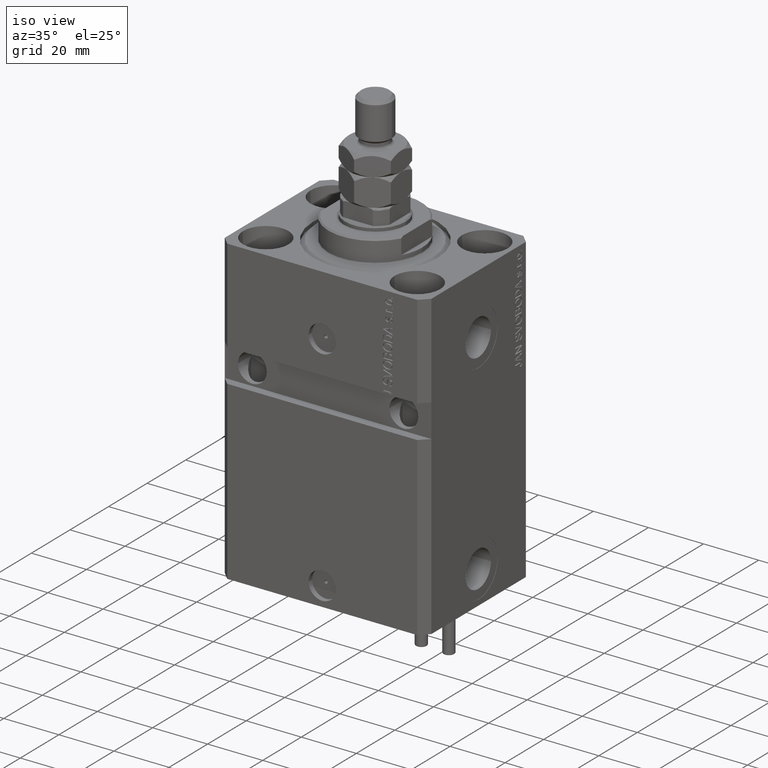
[diagram: clean part render]
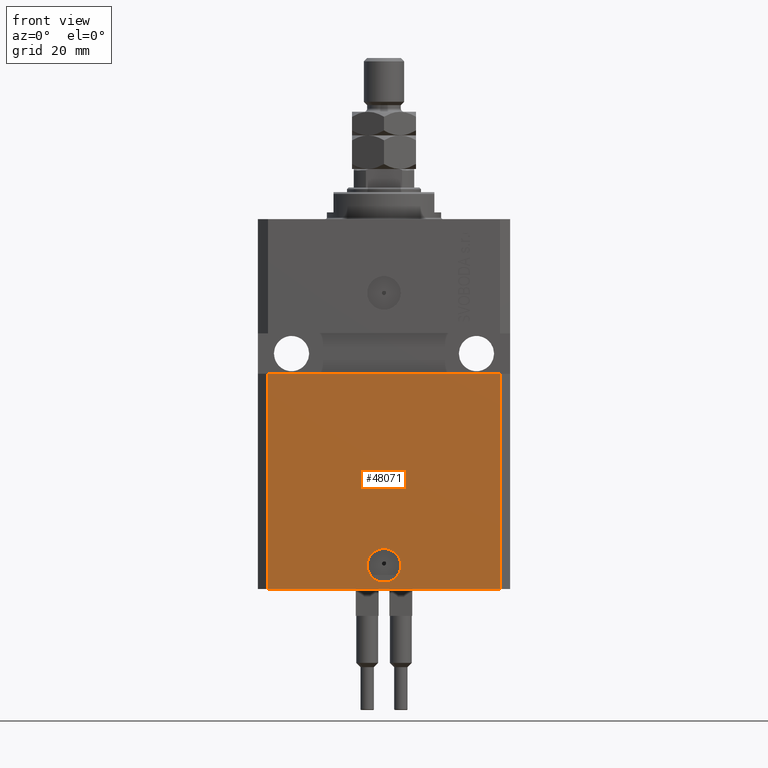
[diagram: tour spotlight — one face highlighted and labeled with its STEP entity id]
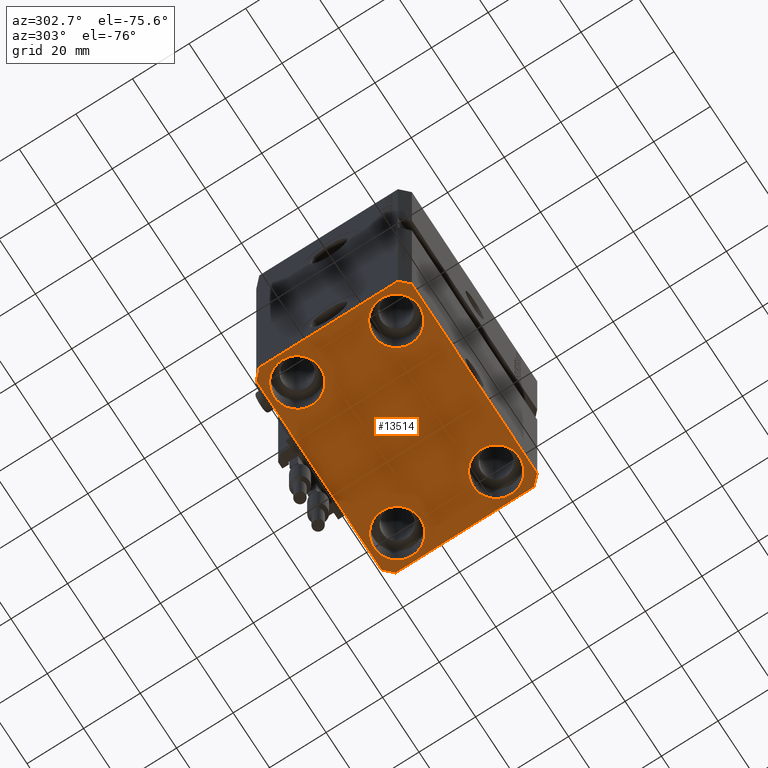
[diagram: tour spotlight — one face highlighted and labeled with its STEP entity id]
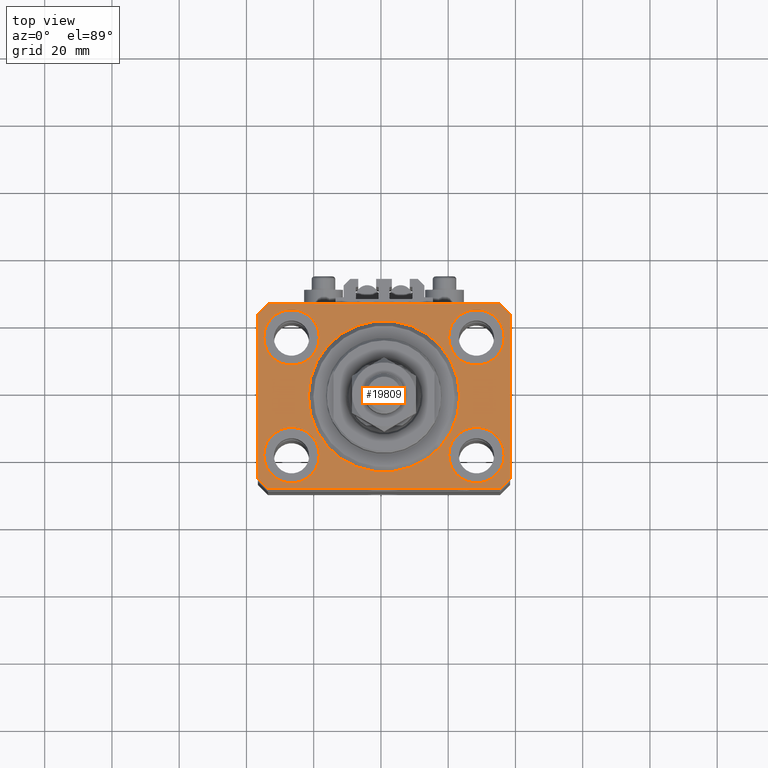
[diagram: tour spotlight — one face highlighted and labeled with its STEP entity id]
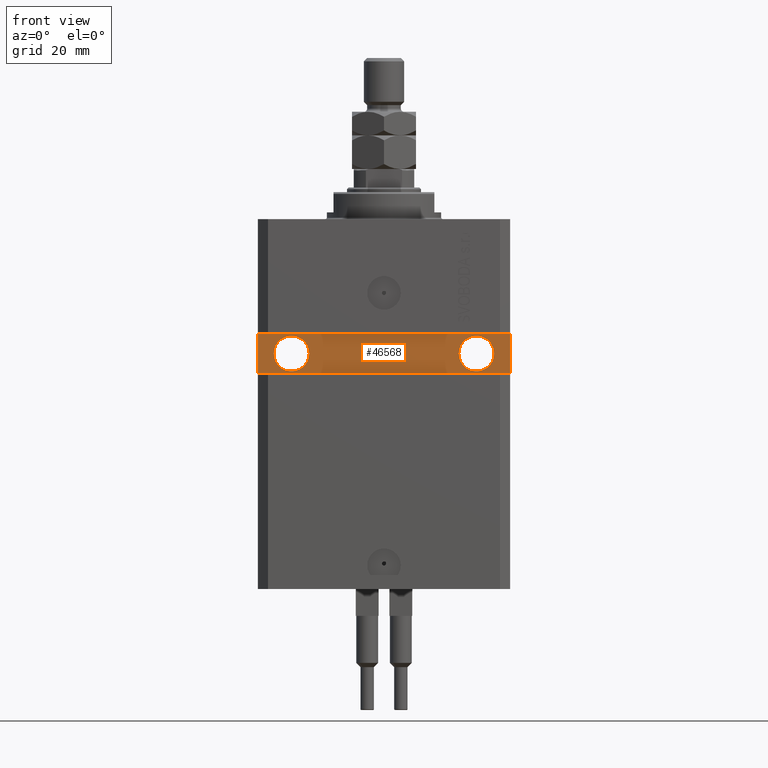
[diagram: tour spotlight — one face highlighted and labeled with its STEP entity id]
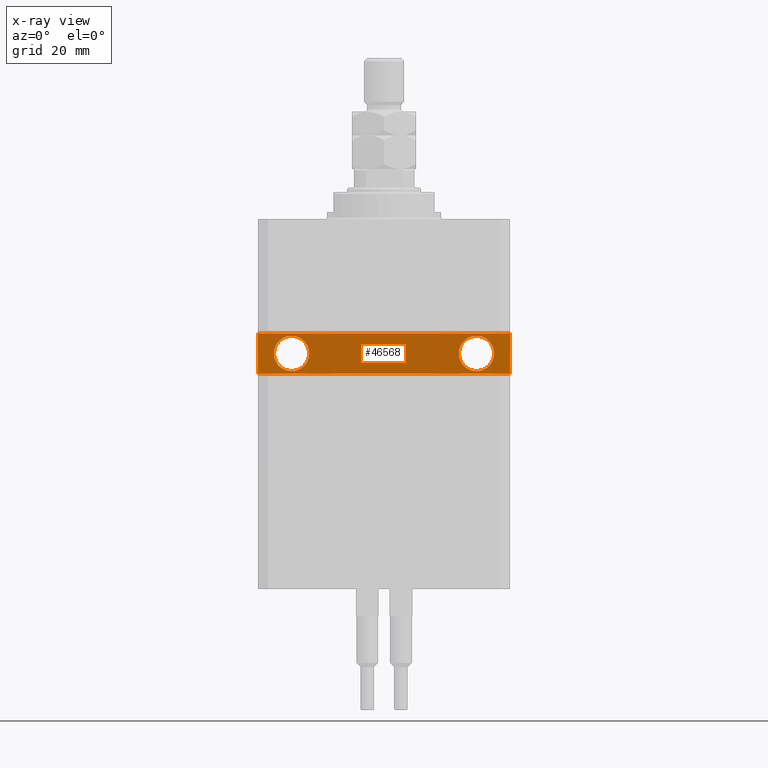
[diagram: x-ray of the same camera — body ghosted, this tour face saturated]
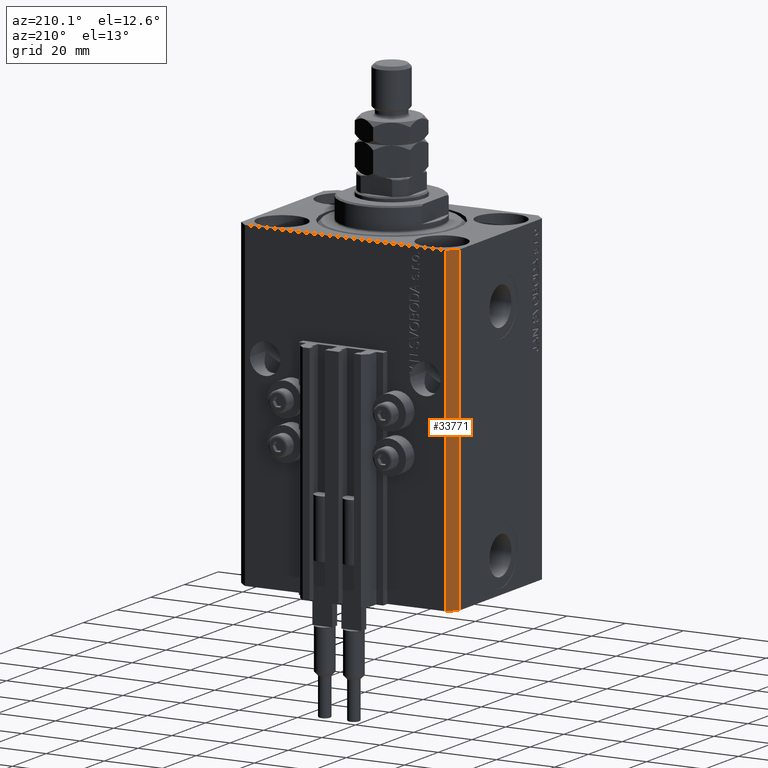
[diagram: tour spotlight — one face highlighted and labeled with its STEP entity id]
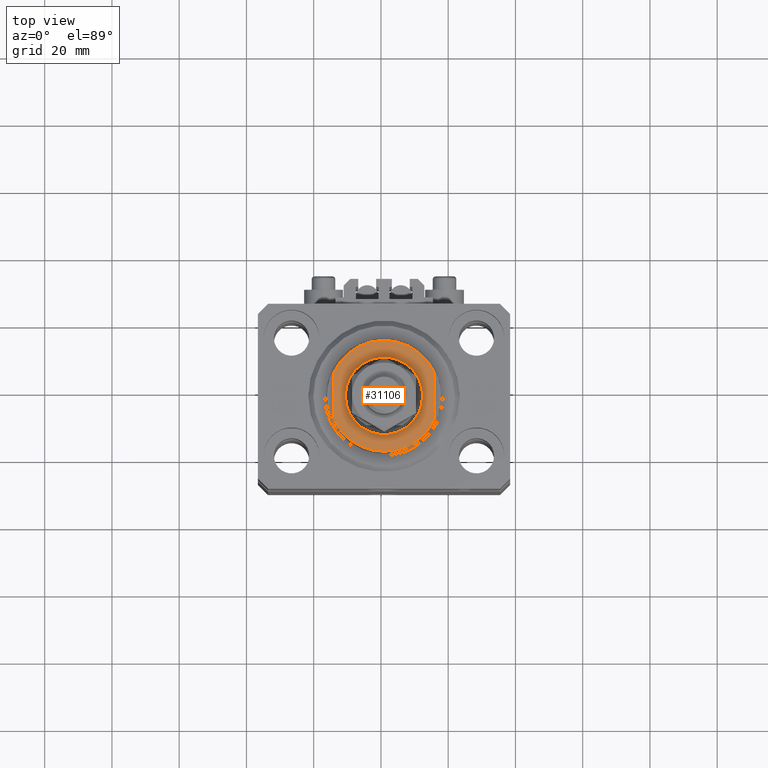
[diagram: tour spotlight — one face highlighted and labeled with its STEP entity id]
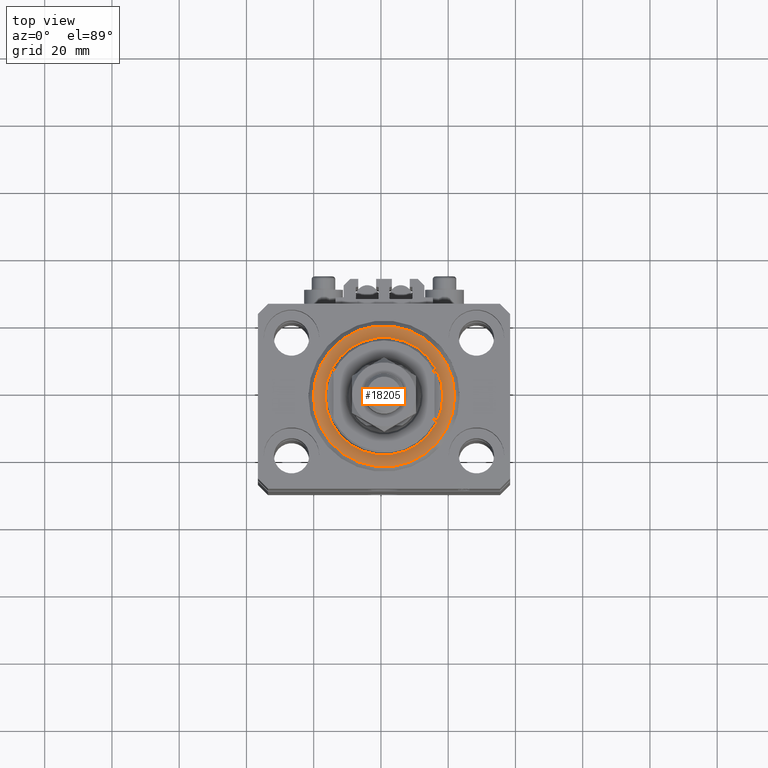
[diagram: tour spotlight — one face highlighted and labeled with its STEP entity id]
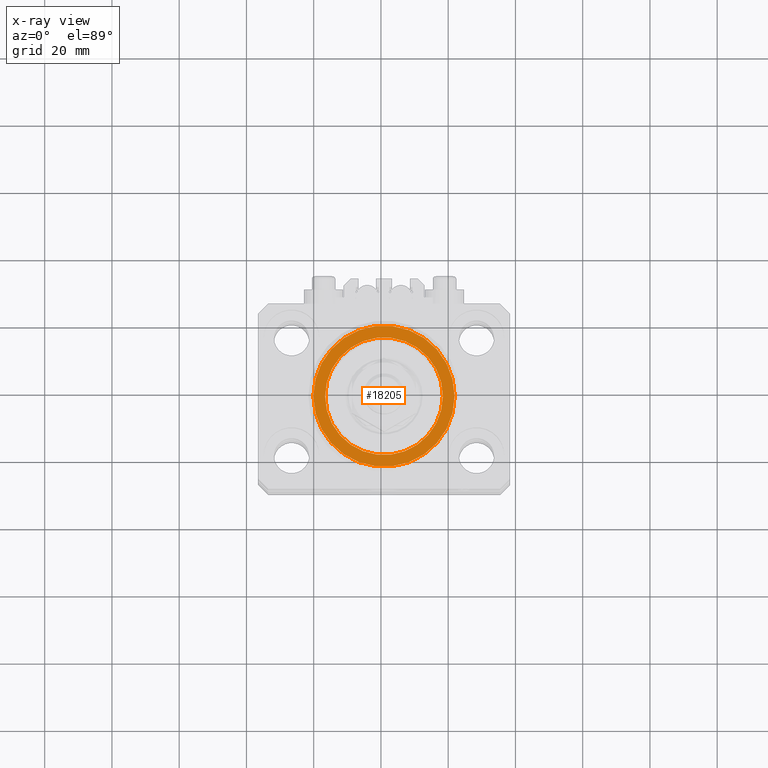
[diagram: x-ray of the same camera — body ghosted, this tour face saturated]
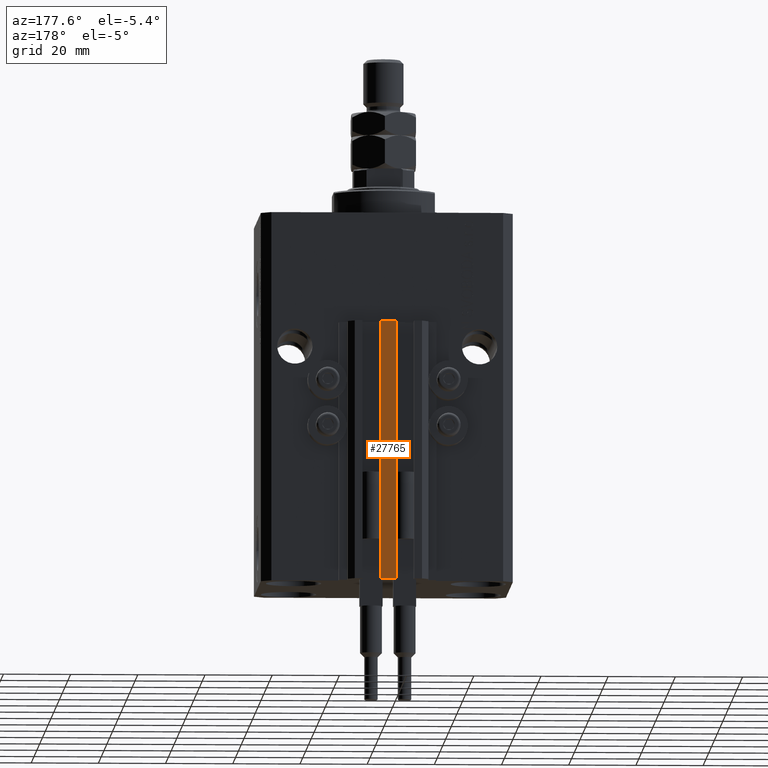
[diagram: tour spotlight — one face highlighted and labeled with its STEP entity id]
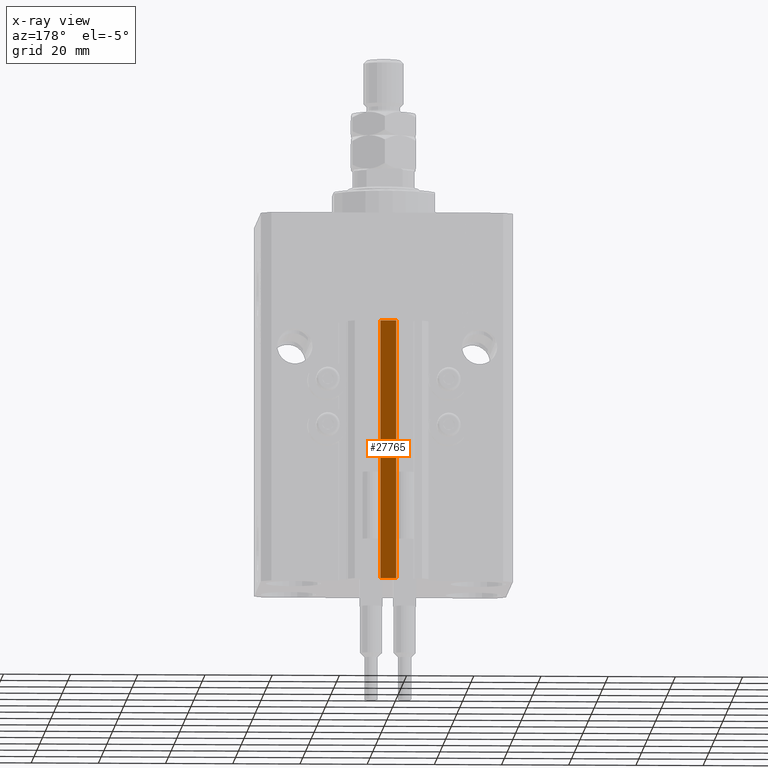
[diagram: x-ray of the same camera — body ghosted, this tour face saturated]
A machine part: a face-by-face anatomy tour. The part has 1181 B-rep faces; the first image is the clean iso view, then the 8 largest visible faces are spotlighted one at a time (largest first), each with its STEP entity span.

Face 1 — front view, entity #48071. In plain terms, the highlighted planar face has unit normal (0, -1, 0).
Definition (entity closure, byte-faithful):
#2215 = VERTEX_POINT ( 'NONE', #14736 ) ;
#2610 = CARTESIAN_POINT ( 'NONE',  ( -34.49999999999998579, -27.49999999999999645, -110.0000000000000000 ) ) ;
#2682 = EDGE_LOOP ( 'NONE', ( #26353, #21934 ) ) ;
#5275 = AXIS2_PLACEMENT_3D ( 'NONE', #42078, #30236, #27184 ) ;
#5320 = ORIENTED_EDGE ( 'NONE', *, *, #41850, .T. ) ;
#5714 = VERTEX_POINT ( 'NONE', #48922 ) ;
#6818 = DIRECTION ( 'NONE',  ( 0.000000000000000000, 0.000000000000000000, 1.000000000000000000 ) ) ;
#7405 = DIRECTION ( 'NONE',  ( 0.000000000000000000, 0.000000000000000000, 1.000000000000000000 ) ) ;
#7725 = EDGE_CURVE ( 'NONE', #22165, #41854, #37880, .T. ) ;
#12008 = VERTEX_POINT ( 'NONE', #22487 ) ;
#12376 = EDGE_CURVE ( 'NONE', #5714, #2215, #22174, .T. ) ;
#12411 = EDGE_CURVE ( 'NONE', #2215, #5714, #42319, .T. ) ;
#12492 = ORIENTED_EDGE ( 'NONE', *, *, #7725, .F. ) ;
#14625 = CARTESIAN_POINT ( 'NONE',  ( 34.49999999999999289, -27.49999999999999645, -110.0000000000000000 ) ) ;
#14736 = CARTESIAN_POINT ( 'NONE',  ( -5.000000000000006217, -27.49999999999999645, -103.0000000000000000 ) ) ;
#15018 = PLANE ( 'NONE',  #21772 ) ;
#15141 = DIRECTION ( 'NONE',  ( 1.176083712526788232E-16, -1.000000000000000000, 0.000000000000000000 ) ) ;
#15542 = LINE ( 'NONE', #14625, #29773 ) ;
#18016 = FACE_OUTER_BOUND ( 'NONE', #30057, .T. ) ;
#18963 = AXIS2_PLACEMENT_3D ( 'NONE', #42321, #15141, #30965 ) ;
#20875 = VECTOR ( 'NONE', #23144, 1000.000000000000000 ) ;
#21772 = AXIS2_PLACEMENT_3D ( 'NONE', #22560, #26325, #41205 ) ;
#21934 = ORIENTED_EDGE ( 'NONE', *, *, #12411, .F. ) ;
#22165 = VERTEX_POINT ( 'NONE', #40149 ) ;
#22174 = CIRCLE ( 'NONE', #18963, 5.000000000000006217 ) ;
#22487 = CARTESIAN_POINT ( 'NONE',  ( 34.49999999999999289, -27.49999999999999645, -110.0000000000000000 ) ) ;
#22560 = CARTESIAN_POINT ( 'NONE',  ( -34.49999999999998579, -27.49999999999999645, -110.0000000000000000 ) ) ;
#23144 = DIRECTION ( 'NONE',  ( 1.000000000000000000, 0.000000000000000000, 0.000000000000000000 ) ) ;
#24054 = EDGE_CURVE ( 'NONE', #41854, #49050, #35219, .T. ) ;
#24574 = ORIENTED_EDGE ( 'NONE', *, *, #24054, .F. ) ;
#26325 = DIRECTION ( 'NONE',  ( 0.000000000000000000, -1.000000000000000000, 0.000000000000000000 ) ) ;
#26353 = ORIENTED_EDGE ( 'NONE', *, *, #12376, .F. ) ;
#27184 = DIRECTION ( 'NONE',  ( 1.000000000000000000, 0.000000000000000000, 0.000000000000000000 ) ) ;
#27633 = CARTESIAN_POINT ( 'NONE',  ( -37.50000000000000000, -27.50000000000000000, -46.00000000000000000 ) ) ;
#29773 = VECTOR ( 'NONE', #6818, 1000.000000000000000 ) ;
#30057 = EDGE_LOOP ( 'NONE', ( #24574, #12492, #5320, #30125 ) ) ;
#30125 = ORIENTED_EDGE ( 'NONE', *, *, #45575, .T. ) ;
#30236 = DIRECTION ( 'NONE',  ( 1.176083712526788232E-16, -1.000000000000000000, 0.000000000000000000 ) ) ;
#30965 = DIRECTION ( 'NONE',  ( 1.000000000000000000, 0.000000000000000000, 0.000000000000000000 ) ) ;
#31202 = CARTESIAN_POINT ( 'NONE',  ( -34.49999999999998579, -27.49999999999999645, -110.0000000000000000 ) ) ;
#31843 = CARTESIAN_POINT ( 'NONE',  ( 34.49999999999999289, -27.49999999999999289, -46.00000000000000711 ) ) ;
#32455 = VECTOR ( 'NONE', #7405, 1000.000000000000000 ) ;
#33657 = FACE_BOUND ( 'NONE', #2682, .T. ) ;
#35000 = LINE ( 'NONE', #31202, #20875 ) ;
#35219 = LINE ( 'NONE', #27633, #36961 ) ;
#36961 = VECTOR ( 'NONE', #42993, 1000.000000000000000 ) ;
#37880 = LINE ( 'NONE', #2610, #32455 ) ;
#40149 = CARTESIAN_POINT ( 'NONE',  ( -34.49999999999998579, -27.49999999999999645, -110.0000000000000000 ) ) ;
#41205 = DIRECTION ( 'NONE',  ( 0.000000000000000000, -0.000000000000000000, -1.000000000000000000 ) ) ;
#41850 = EDGE_CURVE ( 'NONE', #22165, #12008, #35000, .T. ) ;
#41854 = VERTEX_POINT ( 'NONE', #46056 ) ;
#42078 = CARTESIAN_POINT ( 'NONE',  ( 0.000000000000000000, -27.49999999999999645, -103.0000000000000000 ) ) ;
#42319 = CIRCLE ( 'NONE', #5275, 5.000000000000006217 ) ;
#42321 = CARTESIAN_POINT ( 'NONE',  ( 0.000000000000000000, -27.49999999999999645, -103.0000000000000000 ) ) ;
#42993 = DIRECTION ( 'NONE',  ( 1.000000000000000000, 9.251858538542972814E-17, -9.251858538542972814E-17 ) ) ;
#45575 = EDGE_CURVE ( 'NONE', #12008, #49050, #15542, .T. ) ;
#46056 = CARTESIAN_POINT ( 'NONE',  ( -34.49999999999998579, -27.50000000000000000, -46.00000000000000000 ) ) ;
#48071 = ADVANCED_FACE ( 'NONE', ( #33657, #18016 ), #15018, .T. ) ;
#48922 = CARTESIAN_POINT ( 'NONE',  ( 5.000000000000006217, -27.49999999999999645, -103.0000000000000000 ) ) ;
#49050 = VERTEX_POINT ( 'NONE', #31843 ) ;

Face 2 — auxiliary view, entity #13514. In plain terms, the highlighted planar face has unit normal (0, 0, 1).
Definition (entity closure, byte-faithful):
#28 = DIRECTION ( 'NONE',  ( -0.000000000000000000, -0.000000000000000000, 1.000000000000000000 ) ) ;
#75 = VERTEX_POINT ( 'NONE', #40693 ) ;
#237 = CARTESIAN_POINT ( 'NONE',  ( 34.50000000000056843, 27.50000000000000000, -110.0000000000000000 ) ) ;
#1058 = LINE ( 'NONE', #32515, #34458 ) ;
#1569 = DIRECTION ( 'NONE',  ( -0.000000000000000000, -0.000000000000000000, 1.000000000000000000 ) ) ;
#1586 = CIRCLE ( 'NONE', #14472, 8.249999999999992895 ) ;
#2231 = CARTESIAN_POINT ( 'NONE',  ( 37.50000000000051870, 24.49999999999995381, -110.0000000000000000 ) ) ;
#2382 = CARTESIAN_POINT ( 'NONE',  ( 37.49999999999999289, -24.50000000000000000, -110.0000000000000000 ) ) ;
#3276 = CARTESIAN_POINT ( 'NONE',  ( 19.25000000000000000, 17.50000000000001066, -110.0000000000000000 ) ) ;
#3767 = CARTESIAN_POINT ( 'NONE',  ( -19.25000000000000355, 17.50000000000000000, -110.0000000000000000 ) ) ;
#3999 = LINE ( 'NONE', #237, #33659 ) ;
#5074 = ORIENTED_EDGE ( 'NONE', *, *, #13697, .T. ) ;
#5248 = CARTESIAN_POINT ( 'NONE',  ( 27.49999999999999645, 17.50000000000001066, -110.0000000000000000 ) ) ;
#5263 = EDGE_CURVE ( 'NONE', #7270, #38775, #46571, .T. ) ;
#5579 = AXIS2_PLACEMENT_3D ( 'NONE', #5734, #44003, #17303 ) ;
#5734 = CARTESIAN_POINT ( 'NONE',  ( 27.50000000000000355, -17.50000000000000000, -110.0000000000000000 ) ) ;
#5904 = LINE ( 'NONE', #2382, #17538 ) ;
#7270 = VERTEX_POINT ( 'NONE', #2231 ) ;
#8575 = VECTOR ( 'NONE', #15916, 1000.000000000000000 ) ;
#9369 = EDGE_LOOP ( 'NONE', ( #41496, #35951 ) ) ;
#9471 = ORIENTED_EDGE ( 'NONE', *, *, #34953, .F. ) ;
#9724 = DIRECTION ( 'NONE',  ( 1.000000000000000000, 0.000000000000000000, 0.000000000000000000 ) ) ;
#10145 = CARTESIAN_POINT ( 'NONE',  ( 34.49999999999999289, -27.49999999999999645, -110.0000000000000000 ) ) ;
#10224 = CARTESIAN_POINT ( 'NONE',  ( -34.49999999999999289, 27.50000000000000000, -110.0000000000000000 ) ) ;
#10527 = DIRECTION ( 'NONE',  ( 1.000000000000000000, 0.000000000000000000, 0.000000000000000000 ) ) ;
#10726 = LINE ( 'NONE', #10224, #8575 ) ;
#10909 = CARTESIAN_POINT ( 'NONE',  ( -37.49999999999999289, -24.50000000000000000, -110.0000000000000000 ) ) ;
#11349 = CARTESIAN_POINT ( 'NONE',  ( -27.50000000000000355, -17.50000000000000000, -110.0000000000000000 ) ) ;
#11604 = EDGE_CURVE ( 'NONE', #48041, #26604, #47051, .T. ) ;
#11611 = CARTESIAN_POINT ( 'NONE',  ( 37.50000000000051870, 24.49999999999995381, -110.0000000000000000 ) ) ;
#12008 = VERTEX_POINT ( 'NONE', #22487 ) ;
#12756 = AXIS2_PLACEMENT_3D ( 'NONE', #17057, #25097, #10527 ) ;
#13012 = DIRECTION ( 'NONE',  ( -0.000000000000000000, -0.000000000000000000, 1.000000000000000000 ) ) ;
#13152 = CARTESIAN_POINT ( 'NONE',  ( -27.50000000000000355, 17.50000000000000000, -110.0000000000000000 ) ) ;
#13514 = ADVANCED_FACE ( 'NONE', ( #25013, #40400, #48418, #48177, #29301 ), #13715, .F. ) ;
#13671 = CIRCLE ( 'NONE', #33821, 8.250000000000000000 ) ;
#13697 = EDGE_CURVE ( 'NONE', #33320, #23701, #49542, .T. ) ;
#13715 = PLANE ( 'NONE',  #15005 ) ;
#13745 = VERTEX_POINT ( 'NONE', #14414 ) ;
#13809 = DIRECTION ( 'NONE',  ( 1.000000000000000000, 0.000000000000000000, 0.000000000000000000 ) ) ;
#14304 = DIRECTION ( 'NONE',  ( 1.000000000000000000, 0.000000000000000000, 0.000000000000000000 ) ) ;
#14414 = CARTESIAN_POINT ( 'NONE',  ( 35.75000000000000711, -17.50000000000000000, -110.0000000000000000 ) ) ;
#14472 = AXIS2_PLACEMENT_3D ( 'NONE', #5248, #28900, #13809 ) ;
#15005 = AXIS2_PLACEMENT_3D ( 'NONE', #34607, #15214, #37894 ) ;
#15214 = DIRECTION ( 'NONE',  ( 0.000000000000000000, 0.000000000000000000, 1.000000000000000000 ) ) ;
#15916 = DIRECTION ( 'NONE',  ( -0.7071067811865471286, -0.7071067811865479058, 0.000000000000000000 ) ) ;
#16041 = DIRECTION ( 'NONE',  ( -0.000000000000000000, -0.000000000000000000, 1.000000000000000000 ) ) ;
#16090 = VERTEX_POINT ( 'NONE', #3276 ) ;
#16312 = ORIENTED_EDGE ( 'NONE', *, *, #44409, .T. ) ;
#16676 = VERTEX_POINT ( 'NONE', #24791 ) ;
#17057 = CARTESIAN_POINT ( 'NONE',  ( -27.50000000000000355, -17.50000000000000000, -110.0000000000000000 ) ) ;
#17303 = DIRECTION ( 'NONE',  ( 1.000000000000000000, 0.000000000000000000, 0.000000000000000000 ) ) ;
#17505 = ORIENTED_EDGE ( 'NONE', *, *, #42660, .F. ) ;
#17538 = VECTOR ( 'NONE', #25778, 1000.000000000000000 ) ;
#17960 = VECTOR ( 'NONE', #27691, 1000.000000000000114 ) ;
#18452 = EDGE_CURVE ( 'NONE', #38775, #75, #3999, .T. ) ;
#18516 = VECTOR ( 'NONE', #22482, 1000.000000000000000 ) ;
#19194 = EDGE_CURVE ( 'NONE', #26604, #48041, #39292, .T. ) ;
#19844 = EDGE_CURVE ( 'NONE', #12008, #16676, #29267, .T. ) ;
#20432 = EDGE_LOOP ( 'NONE', ( #24348, #16312 ) ) ;
#20497 = AXIS2_PLACEMENT_3D ( 'NONE', #11349, #28, #46064 ) ;
#20607 = AXIS2_PLACEMENT_3D ( 'NONE', #13152, #1569, #44118 ) ;
#20875 = VECTOR ( 'NONE', #23144, 1000.000000000000000 ) ;
#21447 = EDGE_CURVE ( 'NONE', #31199, #40740, #1058, .T. ) ;
#22141 = DIRECTION ( 'NONE',  ( -1.000000000000000000, 0.000000000000000000, 0.000000000000000000 ) ) ;
#22165 = VERTEX_POINT ( 'NONE', #40149 ) ;
#22482 = DIRECTION ( 'NONE',  ( 0.7071067811865483499, -0.7071067811865466846, 0.000000000000000000 ) ) ;
#22487 = CARTESIAN_POINT ( 'NONE',  ( 34.49999999999999289, -27.49999999999999645, -110.0000000000000000 ) ) ;
#23144 = DIRECTION ( 'NONE',  ( 1.000000000000000000, 0.000000000000000000, 0.000000000000000000 ) ) ;
#23701 = VERTEX_POINT ( 'NONE', #34791 ) ;
#24348 = ORIENTED_EDGE ( 'NONE', *, *, #41995, .T. ) ;
#24791 = CARTESIAN_POINT ( 'NONE',  ( 37.49999999999999289, -24.50000000000000000, -110.0000000000000000 ) ) ;
#25013 = FACE_BOUND ( 'NONE', #9369, .T. ) ;
#25097 = DIRECTION ( 'NONE',  ( -0.000000000000000000, -0.000000000000000000, 1.000000000000000000 ) ) ;
#25764 = AXIS2_PLACEMENT_3D ( 'NONE', #37473, #33180, #14304 ) ;
#25778 = DIRECTION ( 'NONE',  ( 1.076236605503979380E-14, 1.000000000000000000, 0.000000000000000000 ) ) ;
#26109 = VERTEX_POINT ( 'NONE', #27649 ) ;
#26140 = ORIENTED_EDGE ( 'NONE', *, *, #19844, .F. ) ;
#26604 = VERTEX_POINT ( 'NONE', #42332 ) ;
#27012 = EDGE_LOOP ( 'NONE', ( #32684, #30859 ) ) ;
#27615 = CARTESIAN_POINT ( 'NONE',  ( -27.50000000000000355, 17.50000000000000000, -110.0000000000000000 ) ) ;
#27649 = CARTESIAN_POINT ( 'NONE',  ( 19.25000000000000000, -17.50000000000000000, -110.0000000000000000 ) ) ;
#27691 = DIRECTION ( 'NONE',  ( -0.7071067811865356934, 0.7071067811865594521, 0.000000000000000000 ) ) ;
#27840 = VERTEX_POINT ( 'NONE', #39979 ) ;
#28637 = ORIENTED_EDGE ( 'NONE', *, *, #43064, .T. ) ;
#28773 = DIRECTION ( 'NONE',  ( 0.7071067811865474617, 0.7071067811865474617, 0.000000000000000000 ) ) ;
#28852 = CARTESIAN_POINT ( 'NONE',  ( 27.50000000000000355, -17.50000000000000000, -110.0000000000000000 ) ) ;
#28900 = DIRECTION ( 'NONE',  ( -0.000000000000000000, -0.000000000000000000, 1.000000000000000000 ) ) ;
#29267 = LINE ( 'NONE', #10145, #35201 ) ;
#29301 = FACE_OUTER_BOUND ( 'NONE', #29659, .T. ) ;
#29523 = EDGE_LOOP ( 'NONE', ( #28637, #5074 ) ) ;
#29659 = EDGE_LOOP ( 'NONE', ( #41613, #49634, #42970, #26140, #45238, #17505, #33477, #9471 ) ) ;
#30604 = CARTESIAN_POINT ( 'NONE',  ( -37.49999999999999289, 24.50000000000000000, -110.0000000000000000 ) ) ;
#30859 = ORIENTED_EDGE ( 'NONE', *, *, #41323, .T. ) ;
#31199 = VERTEX_POINT ( 'NONE', #30604 ) ;
#31202 = CARTESIAN_POINT ( 'NONE',  ( -34.49999999999998579, -27.49999999999999645, -110.0000000000000000 ) ) ;
#31771 = DIRECTION ( 'NONE',  ( 0.000000000000000000, -1.000000000000000000, 0.000000000000000000 ) ) ;
#32515 = CARTESIAN_POINT ( 'NONE',  ( -37.49999999999999289, 24.50000000000000000, -110.0000000000000000 ) ) ;
#32684 = ORIENTED_EDGE ( 'NONE', *, *, #43184, .T. ) ;
#33180 = DIRECTION ( 'NONE',  ( -0.000000000000000000, -0.000000000000000000, 1.000000000000000000 ) ) ;
#33320 = VERTEX_POINT ( 'NONE', #3767 ) ;
#33477 = ORIENTED_EDGE ( 'NONE', *, *, #21447, .F. ) ;
#33659 = VECTOR ( 'NONE', #22141, 1000.000000000000000 ) ;
#33821 = AXIS2_PLACEMENT_3D ( 'NONE', #27615, #16041, #34952 ) ;
#34458 = VECTOR ( 'NONE', #31771, 1000.000000000000000 ) ;
#34607 = CARTESIAN_POINT ( 'NONE',  ( 0.000000000000000000, 0.000000000000000000, -110.0000000000000000 ) ) ;
#34791 = CARTESIAN_POINT ( 'NONE',  ( -35.75000000000000711, 17.50000000000000000, -110.0000000000000000 ) ) ;
#34952 = DIRECTION ( 'NONE',  ( 1.000000000000000000, 0.000000000000000000, 0.000000000000000000 ) ) ;
#34953 = EDGE_CURVE ( 'NONE', #75, #31199, #10726, .T. ) ;
#35000 = LINE ( 'NONE', #31202, #20875 ) ;
#35201 = VECTOR ( 'NONE', #28773, 1000.000000000000114 ) ;
#35951 = ORIENTED_EDGE ( 'NONE', *, *, #11604, .T. ) ;
#37364 = LINE ( 'NONE', #10909, #18516 ) ;
#37473 = CARTESIAN_POINT ( 'NONE',  ( 27.49999999999999645, 17.50000000000001066, -110.0000000000000000 ) ) ;
#37894 = DIRECTION ( 'NONE',  ( 1.000000000000000000, 0.000000000000000000, -0.000000000000000000 ) ) ;
#38775 = VERTEX_POINT ( 'NONE', #44919 ) ;
#39292 = CIRCLE ( 'NONE', #12756, 8.250000000000000000 ) ;
#39606 = EDGE_CURVE ( 'NONE', #16676, #7270, #5904, .T. ) ;
#39979 = CARTESIAN_POINT ( 'NONE',  ( 35.74999999999999289, 17.50000000000001066, -110.0000000000000000 ) ) ;
#40149 = CARTESIAN_POINT ( 'NONE',  ( -34.49999999999998579, -27.49999999999999645, -110.0000000000000000 ) ) ;
#40358 = CARTESIAN_POINT ( 'NONE',  ( -37.49999999999999289, -24.50000000000000000, -110.0000000000000000 ) ) ;
#40400 = FACE_BOUND ( 'NONE', #27012, .T. ) ;
#40693 = CARTESIAN_POINT ( 'NONE',  ( -34.49999999999999289, 27.50000000000000000, -110.0000000000000000 ) ) ;
#40740 = VERTEX_POINT ( 'NONE', #40358 ) ;
#40960 = CIRCLE ( 'NONE', #5579, 8.250000000000000000 ) ;
#41323 = EDGE_CURVE ( 'NONE', #13745, #26109, #40960, .T. ) ;
#41496 = ORIENTED_EDGE ( 'NONE', *, *, #19194, .T. ) ;
#41613 = ORIENTED_EDGE ( 'NONE', *, *, #18452, .F. ) ;
#41850 = EDGE_CURVE ( 'NONE', #22165, #12008, #35000, .T. ) ;
#41995 = EDGE_CURVE ( 'NONE', #16090, #27840, #1586, .T. ) ;
#42332 = CARTESIAN_POINT ( 'NONE',  ( -35.75000000000000711, -17.50000000000000000, -110.0000000000000000 ) ) ;
#42660 = EDGE_CURVE ( 'NONE', #40740, #22165, #37364, .T. ) ;
#42970 = ORIENTED_EDGE ( 'NONE', *, *, #39606, .F. ) ;
#43064 = EDGE_CURVE ( 'NONE', #23701, #33320, #13671, .T. ) ;
#43184 = EDGE_CURVE ( 'NONE', #26109, #13745, #45836, .T. ) ;
#44003 = DIRECTION ( 'NONE',  ( -0.000000000000000000, -0.000000000000000000, 1.000000000000000000 ) ) ;
#44118 = DIRECTION ( 'NONE',  ( 1.000000000000000000, 0.000000000000000000, 0.000000000000000000 ) ) ;
#44409 = EDGE_CURVE ( 'NONE', #27840, #16090, #47455, .T. ) ;
#44466 = CARTESIAN_POINT ( 'NONE',  ( -19.25000000000000355, -17.50000000000000000, -110.0000000000000000 ) ) ;
#44919 = CARTESIAN_POINT ( 'NONE',  ( 34.50000000000056843, 27.50000000000000000, -110.0000000000000000 ) ) ;
#45238 = ORIENTED_EDGE ( 'NONE', *, *, #41850, .F. ) ;
#45836 = CIRCLE ( 'NONE', #48226, 8.250000000000000000 ) ;
#46064 = DIRECTION ( 'NONE',  ( 1.000000000000000000, 0.000000000000000000, 0.000000000000000000 ) ) ;
#46571 = LINE ( 'NONE', #11611, #17960 ) ;
#47051 = CIRCLE ( 'NONE', #20497, 8.250000000000000000 ) ;
#47455 = CIRCLE ( 'NONE', #25764, 8.249999999999992895 ) ;
#48041 = VERTEX_POINT ( 'NONE', #44466 ) ;
#48177 = FACE_BOUND ( 'NONE', #29523, .T. ) ;
#48226 = AXIS2_PLACEMENT_3D ( 'NONE', #28852, #13012, #9724 ) ;
#48418 = FACE_BOUND ( 'NONE', #20432, .T. ) ;
#49542 = CIRCLE ( 'NONE', #20607, 8.250000000000000000 ) ;
#49634 = ORIENTED_EDGE ( 'NONE', *, *, #5263, .F. ) ;

Face 3 — top view, entity #19809. In plain terms, the highlighted planar face has unit normal (0, 0, 1).
Definition (entity closure, byte-faithful):
#477 = ORIENTED_EDGE ( 'NONE', *, *, #44257, .F. ) ;
#545 = CARTESIAN_POINT ( 'NONE',  ( -27.50000000000000355, -17.50000000000000000, 0.000000000000000000 ) ) ;
#691 = DIRECTION ( 'NONE',  ( 1.000000000000000000, 0.000000000000000000, 0.000000000000000000 ) ) ;
#795 = DIRECTION ( 'NONE',  ( 0.000000000000000000, 0.000000000000000000, 1.000000000000000000 ) ) ;
#1050 = VERTEX_POINT ( 'NONE', #32457 ) ;
#1211 = DIRECTION ( 'NONE',  ( 0.000000000000000000, 0.000000000000000000, 1.000000000000000000 ) ) ;
#1600 = ORIENTED_EDGE ( 'NONE', *, *, #1882, .F. ) ;
#1830 = PLANE ( 'NONE',  #34418 ) ;
#1882 = EDGE_CURVE ( 'NONE', #3565, #36698, #26746, .T. ) ;
#2157 = DIRECTION ( 'NONE',  ( 1.000000000000000000, 0.000000000000000000, 0.000000000000000000 ) ) ;
#2210 = DIRECTION ( 'NONE',  ( 0.000000000000000000, 0.000000000000000000, 1.000000000000000000 ) ) ;
#2220 = EDGE_LOOP ( 'NONE', ( #38931, #17192 ) ) ;
#2591 = AXIS2_PLACEMENT_3D ( 'NONE', #14551, #26097, #45243 ) ;
#3015 = DIRECTION ( 'NONE',  ( 1.000000000000000000, 0.000000000000000000, 0.000000000000000000 ) ) ;
#3121 = VECTOR ( 'NONE', #36266, 1000.000000000000000 ) ;
#3565 = VERTEX_POINT ( 'NONE', #15908 ) ;
#3599 = CARTESIAN_POINT ( 'NONE',  ( -19.25000000000000355, -17.50000000000000000, 0.000000000000000000 ) ) ;
#3793 = AXIS2_PLACEMENT_3D ( 'NONE', #40197, #47958, #2157 ) ;
#3913 = CIRCLE ( 'NONE', #19180, 8.250000000000000000 ) ;
#4853 = CIRCLE ( 'NONE', #24145, 8.250000000000000000 ) ;
#5252 = CARTESIAN_POINT ( 'NONE',  ( 35.74999999999999289, 17.50000000000001066, 0.000000000000000000 ) ) ;
#5299 = EDGE_LOOP ( 'NONE', ( #477, #29257 ) ) ;
#5649 = CARTESIAN_POINT ( 'NONE',  ( 34.49999999999999289, -27.49999999999999645, 0.000000000000000000 ) ) ;
#6206 = VECTOR ( 'NONE', #26933, 1000.000000000000114 ) ;
#6764 = EDGE_CURVE ( 'NONE', #36698, #3565, #25167, .T. ) ;
#6770 = EDGE_CURVE ( 'NONE', #31545, #30555, #26348, .T. ) ;
#7051 = DIRECTION ( 'NONE',  ( 0.000000000000000000, 0.000000000000000000, 1.000000000000000000 ) ) ;
#7178 = ORIENTED_EDGE ( 'NONE', *, *, #10212, .T. ) ;
#7188 = CIRCLE ( 'NONE', #24857, 8.250000000000000000 ) ;
#7655 = VERTEX_POINT ( 'NONE', #3599 ) ;
#7922 = VERTEX_POINT ( 'NONE', #20182 ) ;
#8642 = CARTESIAN_POINT ( 'NONE',  ( -34.49999999999999289, 27.50000000000000000, 0.000000000000000000 ) ) ;
#9034 = LINE ( 'NONE', #20347, #37568 ) ;
#9566 = VERTEX_POINT ( 'NONE', #37445 ) ;
#10121 = LINE ( 'NONE', #25200, #47803 ) ;
#10196 = EDGE_CURVE ( 'NONE', #43494, #25458, #17904, .T. ) ;
#10212 = EDGE_CURVE ( 'NONE', #1050, #28509, #10121, .T. ) ;
#10221 = CARTESIAN_POINT ( 'NONE',  ( -34.49999999999998579, -27.49999999999999645, 0.000000000000000000 ) ) ;
#12056 = CARTESIAN_POINT ( 'NONE',  ( 19.25000000000000000, -17.50000000000000000, 0.000000000000000000 ) ) ;
#12367 = DIRECTION ( 'NONE',  ( 1.000000000000000000, 0.000000000000000000, 0.000000000000000000 ) ) ;
#12554 = CARTESIAN_POINT ( 'NONE',  ( 27.50000000000000355, -17.50000000000000000, 0.000000000000000000 ) ) ;
#12695 = DIRECTION ( 'NONE',  ( -0.7071067811865471286, -0.7071067811865479058, 0.000000000000000000 ) ) ;
#12932 = DIRECTION ( 'NONE',  ( 1.000000000000000000, 0.000000000000000000, -0.000000000000000000 ) ) ;
#13177 = FACE_BOUND ( 'NONE', #24330, .T. ) ;
#13403 = DIRECTION ( 'NONE',  ( 1.076236605503979380E-14, 1.000000000000000000, 0.000000000000000000 ) ) ;
#13819 = AXIS2_PLACEMENT_3D ( 'NONE', #19107, #26916, #3015 ) ;
#13840 = CARTESIAN_POINT ( 'NONE',  ( -27.50000000000000355, 17.50000000000000000, 0.000000000000000000 ) ) ;
#13928 = FACE_OUTER_BOUND ( 'NONE', #39382, .T. ) ;
#14551 = CARTESIAN_POINT ( 'NONE',  ( 0.000000000000000000, 0.000000000000000000, 0.000000000000000000 ) ) ;
#15850 = CARTESIAN_POINT ( 'NONE',  ( 34.49999999999999289, -27.49999999999999645, 0.000000000000000000 ) ) ;
#15908 = CARTESIAN_POINT ( 'NONE',  ( 22.50000000000000355, 0.000000000000000000, 0.000000000000000000 ) ) ;
#15911 = CARTESIAN_POINT ( 'NONE',  ( -37.49999999999999289, -24.50000000000000000, 0.000000000000000000 ) ) ;
#15931 = CIRCLE ( 'NONE', #16747, 8.250000000000000000 ) ;
#16092 = LINE ( 'NONE', #15850, #6206 ) ;
#16747 = AXIS2_PLACEMENT_3D ( 'NONE', #13840, #7051, #44546 ) ;
#17123 = ORIENTED_EDGE ( 'NONE', *, *, #36723, .F. ) ;
#17187 = FACE_BOUND ( 'NONE', #2220, .T. ) ;
#17192 = ORIENTED_EDGE ( 'NONE', *, *, #40978, .F. ) ;
#17434 = FACE_BOUND ( 'NONE', #32197, .T. ) ;
#17664 = DIRECTION ( 'NONE',  ( -1.000000000000000000, 0.000000000000000000, 0.000000000000000000 ) ) ;
#17904 = LINE ( 'NONE', #20940, #24478 ) ;
#18787 = EDGE_LOOP ( 'NONE', ( #41527, #33062 ) ) ;
#19107 = CARTESIAN_POINT ( 'NONE',  ( -27.50000000000000355, 17.50000000000000000, 0.000000000000000000 ) ) ;
#19180 = AXIS2_PLACEMENT_3D ( 'NONE', #45007, #2210, #48262 ) ;
#19196 = EDGE_CURVE ( 'NONE', #7655, #7922, #3913, .T. ) ;
#19326 = CARTESIAN_POINT ( 'NONE',  ( 27.50000000000000355, -17.50000000000000000, 0.000000000000000000 ) ) ;
#19809 = ADVANCED_FACE ( 'NONE', ( #17187, #40618, #13177, #36602, #17434, #13928 ), #1830, .T. ) ;
#20182 = CARTESIAN_POINT ( 'NONE',  ( -35.75000000000000711, -17.50000000000000000, 0.000000000000000000 ) ) ;
#20322 = AXIS2_PLACEMENT_3D ( 'NONE', #45233, #22331, #49239 ) ;
#20347 = CARTESIAN_POINT ( 'NONE',  ( 37.50000000000051870, 24.49999999999995381, 0.000000000000000000 ) ) ;
#20585 = AXIS2_PLACEMENT_3D ( 'NONE', #40011, #29156, #44517 ) ;
#20723 = CARTESIAN_POINT ( 'NONE',  ( -34.49999999999999289, 27.50000000000000000, 0.000000000000000000 ) ) ;
#20822 = VERTEX_POINT ( 'NONE', #10221 ) ;
#20940 = CARTESIAN_POINT ( 'NONE',  ( 34.50000000000056843, 27.50000000000000000, 0.000000000000000000 ) ) ;
#21337 = DIRECTION ( 'NONE',  ( 1.000000000000000000, 0.000000000000000000, 0.000000000000000000 ) ) ;
#21825 = ORIENTED_EDGE ( 'NONE', *, *, #36441, .T. ) ;
#22331 = DIRECTION ( 'NONE',  ( 0.000000000000000000, 0.000000000000000000, 1.000000000000000000 ) ) ;
#22579 = CARTESIAN_POINT ( 'NONE',  ( -37.49999999999999289, 24.50000000000000000, 0.000000000000000000 ) ) ;
#23094 = CARTESIAN_POINT ( 'NONE',  ( -22.50000000000000355, 2.755455298081544383E-15, 0.000000000000000000 ) ) ;
#23541 = DIRECTION ( 'NONE',  ( 0.000000000000000000, -1.000000000000000000, 0.000000000000000000 ) ) ;
#23652 = VERTEX_POINT ( 'NONE', #5649 ) ;
#23713 = EDGE_CURVE ( 'NONE', #30555, #20822, #35531, .T. ) ;
#24145 = AXIS2_PLACEMENT_3D ( 'NONE', #12554, #1211, #39251 ) ;
#24330 = EDGE_LOOP ( 'NONE', ( #35468, #17123 ) ) ;
#24361 = DIRECTION ( 'NONE',  ( -0.7071067811865356934, 0.7071067811865594521, 0.000000000000000000 ) ) ;
#24478 = VECTOR ( 'NONE', #17664, 1000.000000000000000 ) ;
#24857 = AXIS2_PLACEMENT_3D ( 'NONE', #545, #795, #12367 ) ;
#25167 = CIRCLE ( 'NONE', #20322, 22.50000000000000355 ) ;
#25200 = CARTESIAN_POINT ( 'NONE',  ( 37.49999999999999289, -24.50000000000000000, 0.000000000000000000 ) ) ;
#25458 = VERTEX_POINT ( 'NONE', #8642 ) ;
#25469 = CIRCLE ( 'NONE', #3793, 8.249999999999992895 ) ;
#25507 = VECTOR ( 'NONE', #12695, 1000.000000000000000 ) ;
#25577 = CARTESIAN_POINT ( 'NONE',  ( 19.25000000000000000, 17.50000000000001066, 0.000000000000000000 ) ) ;
#25914 = EDGE_CURVE ( 'NONE', #35175, #9566, #45927, .T. ) ;
#26097 = DIRECTION ( 'NONE',  ( 0.000000000000000000, 0.000000000000000000, 1.000000000000000000 ) ) ;
#26160 = VERTEX_POINT ( 'NONE', #12056 ) ;
#26348 = LINE ( 'NONE', #22579, #49289 ) ;
#26746 = CIRCLE ( 'NONE', #2591, 22.50000000000000355 ) ;
#26916 = DIRECTION ( 'NONE',  ( 0.000000000000000000, 0.000000000000000000, 1.000000000000000000 ) ) ;
#26933 = DIRECTION ( 'NONE',  ( 0.7071067811865474617, 0.7071067811865474617, 0.000000000000000000 ) ) ;
#27135 = VERTEX_POINT ( 'NONE', #25577 ) ;
#27421 = CIRCLE ( 'NONE', #42702, 8.250000000000000000 ) ;
#28509 = VERTEX_POINT ( 'NONE', #29007 ) ;
#29007 = CARTESIAN_POINT ( 'NONE',  ( 37.50000000000051870, 24.49999999999995381, 0.000000000000000000 ) ) ;
#29156 = DIRECTION ( 'NONE',  ( 0.000000000000000000, 0.000000000000000000, 1.000000000000000000 ) ) ;
#29257 = ORIENTED_EDGE ( 'NONE', *, *, #47858, .F. ) ;
#29378 = VECTOR ( 'NONE', #21337, 1000.000000000000000 ) ;
#29647 = EDGE_CURVE ( 'NONE', #20822, #23652, #32941, .T. ) ;
#30094 = VERTEX_POINT ( 'NONE', #37923 ) ;
#30555 = VERTEX_POINT ( 'NONE', #15911 ) ;
#31545 = VERTEX_POINT ( 'NONE', #44102 ) ;
#32197 = EDGE_LOOP ( 'NONE', ( #1600, #39118 ) ) ;
#32457 = CARTESIAN_POINT ( 'NONE',  ( 37.49999999999999289, -24.50000000000000000, 0.000000000000000000 ) ) ;
#32941 = LINE ( 'NONE', #39998, #29378 ) ;
#33062 = ORIENTED_EDGE ( 'NONE', *, *, #39098, .F. ) ;
#34418 = AXIS2_PLACEMENT_3D ( 'NONE', #40871, #37105, #12932 ) ;
#34612 = EDGE_CURVE ( 'NONE', #36403, #27135, #48729, .T. ) ;
#34842 = ORIENTED_EDGE ( 'NONE', *, *, #6770, .T. ) ;
#35175 = VERTEX_POINT ( 'NONE', #42852 ) ;
#35468 = ORIENTED_EDGE ( 'NONE', *, *, #34612, .F. ) ;
#35531 = LINE ( 'NONE', #44044, #3121 ) ;
#35720 = ORIENTED_EDGE ( 'NONE', *, *, #10196, .T. ) ;
#36259 = EDGE_CURVE ( 'NONE', #23652, #1050, #16092, .T. ) ;
#36266 = DIRECTION ( 'NONE',  ( 0.7071067811865483499, -0.7071067811865466846, 0.000000000000000000 ) ) ;
#36323 = ORIENTED_EDGE ( 'NONE', *, *, #29647, .T. ) ;
#36331 = ORIENTED_EDGE ( 'NONE', *, *, #23713, .T. ) ;
#36403 = VERTEX_POINT ( 'NONE', #5252 ) ;
#36441 = EDGE_CURVE ( 'NONE', #28509, #43494, #9034, .T. ) ;
#36602 = FACE_BOUND ( 'NONE', #18787, .T. ) ;
#36698 = VERTEX_POINT ( 'NONE', #23094 ) ;
#36723 = EDGE_CURVE ( 'NONE', #27135, #36403, #25469, .T. ) ;
#37003 = EDGE_CURVE ( 'NONE', #25458, #31545, #43404, .T. ) ;
#37105 = DIRECTION ( 'NONE',  ( 0.000000000000000000, 0.000000000000000000, 1.000000000000000000 ) ) ;
#37445 = CARTESIAN_POINT ( 'NONE',  ( -35.75000000000000711, 17.50000000000000000, 0.000000000000000000 ) ) ;
#37568 = VECTOR ( 'NONE', #24361, 1000.000000000000114 ) ;
#37923 = CARTESIAN_POINT ( 'NONE',  ( 35.75000000000000711, -17.50000000000000000, 0.000000000000000000 ) ) ;
#38476 = ORIENTED_EDGE ( 'NONE', *, *, #37003, .T. ) ;
#38931 = ORIENTED_EDGE ( 'NONE', *, *, #19196, .F. ) ;
#39098 = EDGE_CURVE ( 'NONE', #9566, #35175, #15931, .T. ) ;
#39118 = ORIENTED_EDGE ( 'NONE', *, *, #6764, .F. ) ;
#39251 = DIRECTION ( 'NONE',  ( 1.000000000000000000, 0.000000000000000000, 0.000000000000000000 ) ) ;
#39382 = EDGE_LOOP ( 'NONE', ( #35720, #38476, #34842, #36331, #36323, #49112, #7178, #21825 ) ) ;
#39998 = CARTESIAN_POINT ( 'NONE',  ( -34.49999999999998579, -27.49999999999999645, 0.000000000000000000 ) ) ;
#40011 = CARTESIAN_POINT ( 'NONE',  ( 27.49999999999999645, 17.50000000000001066, 0.000000000000000000 ) ) ;
#40197 = CARTESIAN_POINT ( 'NONE',  ( 27.49999999999999645, 17.50000000000001066, 0.000000000000000000 ) ) ;
#40618 = FACE_BOUND ( 'NONE', #5299, .T. ) ;
#40871 = CARTESIAN_POINT ( 'NONE',  ( 0.000000000000000000, 0.000000000000000000, 0.000000000000000000 ) ) ;
#40978 = EDGE_CURVE ( 'NONE', #7922, #7655, #7188, .T. ) ;
#41527 = ORIENTED_EDGE ( 'NONE', *, *, #25914, .F. ) ;
#42702 = AXIS2_PLACEMENT_3D ( 'NONE', #19326, #46258, #691 ) ;
#42852 = CARTESIAN_POINT ( 'NONE',  ( -19.25000000000000355, 17.50000000000000000, 0.000000000000000000 ) ) ;
#43404 = LINE ( 'NONE', #20723, #25507 ) ;
#43494 = VERTEX_POINT ( 'NONE', #47654 ) ;
#44044 = CARTESIAN_POINT ( 'NONE',  ( -37.49999999999999289, -24.50000000000000000, 0.000000000000000000 ) ) ;
#44102 = CARTESIAN_POINT ( 'NONE',  ( -37.49999999999999289, 24.50000000000000000, 0.000000000000000000 ) ) ;
#44257 = EDGE_CURVE ( 'NONE', #30094, #26160, #4853, .T. ) ;
#44517 = DIRECTION ( 'NONE',  ( 1.000000000000000000, 0.000000000000000000, 0.000000000000000000 ) ) ;
#44546 = DIRECTION ( 'NONE',  ( 1.000000000000000000, 0.000000000000000000, 0.000000000000000000 ) ) ;
#45007 = CARTESIAN_POINT ( 'NONE',  ( -27.50000000000000355, -17.50000000000000000, 0.000000000000000000 ) ) ;
#45233 = CARTESIAN_POINT ( 'NONE',  ( 0.000000000000000000, 0.000000000000000000, 0.000000000000000000 ) ) ;
#45243 = DIRECTION ( 'NONE',  ( 1.000000000000000000, 0.000000000000000000, 0.000000000000000000 ) ) ;
#45927 = CIRCLE ( 'NONE', #13819, 8.250000000000000000 ) ;
#46258 = DIRECTION ( 'NONE',  ( 0.000000000000000000, 0.000000000000000000, 1.000000000000000000 ) ) ;
#47654 = CARTESIAN_POINT ( 'NONE',  ( 34.50000000000056843, 27.50000000000000000, 0.000000000000000000 ) ) ;
#47803 = VECTOR ( 'NONE', #13403, 1000.000000000000000 ) ;
#47858 = EDGE_CURVE ( 'NONE', #26160, #30094, #27421, .T. ) ;
#47958 = DIRECTION ( 'NONE',  ( 0.000000000000000000, 0.000000000000000000, 1.000000000000000000 ) ) ;
#48262 = DIRECTION ( 'NONE',  ( 1.000000000000000000, 0.000000000000000000, 0.000000000000000000 ) ) ;
#48729 = CIRCLE ( 'NONE', #20585, 8.249999999999992895 ) ;
#49112 = ORIENTED_EDGE ( 'NONE', *, *, #36259, .T. ) ;
#49239 = DIRECTION ( 'NONE',  ( 1.000000000000000000, 0.000000000000000000, 0.000000000000000000 ) ) ;
#49289 = VECTOR ( 'NONE', #23541, 1000.000000000000000 ) ;

Face 4 — front view, entity #46568. An x-ray twin of the same camera follows (body ghosted, this face saturated) — the face is partly hidden behind the body. In plain terms, the highlighted planar face has unit normal (0, -1, 0).
Definition (entity closure, byte-faithful):
#199 = ORIENTED_EDGE ( 'NONE', *, *, #21697, .T. ) ;
#214 = LINE ( 'NONE', #34226, #6109 ) ;
#347 = AXIS2_PLACEMENT_3D ( 'NONE', #22450, #2811, #41861 ) ;
#758 = DIRECTION ( 'NONE',  ( 1.000000000000000000, 9.251858538542972814E-17, -9.251858538542972814E-17 ) ) ;
#871 = AXIS2_PLACEMENT_3D ( 'NONE', #20427, #13392, #9113 ) ;
#1647 = DIRECTION ( 'NONE',  ( 1.000000000000000000, 0.000000000000000000, 0.000000000000000000 ) ) ;
#2811 = DIRECTION ( 'NONE',  ( 1.171720209325604191E-16, -1.000000000000000000, 0.000000000000000000 ) ) ;
#4402 = VERTEX_POINT ( 'NONE', #32157 ) ;
#5428 = CARTESIAN_POINT ( 'NONE',  ( -27.49999999999999289, -24.50000000000000000, -40.00000000000000711 ) ) ;
#6109 = VECTOR ( 'NONE', #49533, 1000.000000000000000 ) ;
#6551 = VERTEX_POINT ( 'NONE', #32667 ) ;
#8536 = VERTEX_POINT ( 'NONE', #34229 ) ;
#9113 = DIRECTION ( 'NONE',  ( 1.000000000000000000, 0.000000000000000000, 0.000000000000000000 ) ) ;
#11203 = ORIENTED_EDGE ( 'NONE', *, *, #24507, .F. ) ;
#12530 = EDGE_LOOP ( 'NONE', ( #199, #39997, #23254, #46628 ) ) ;
#12772 = EDGE_CURVE ( 'NONE', #48111, #43814, #214, .T. ) ;
#12790 = VECTOR ( 'NONE', #37578, 1000.000000000000000 ) ;
#13392 = DIRECTION ( 'NONE',  ( 1.101411730780568590E-16, -1.000000000000000000, 0.000000000000000000 ) ) ;
#13623 = CARTESIAN_POINT ( 'NONE',  ( 2.191435984341281325E-15, -24.49999999999999645, 0.000000000000000000 ) ) ;
#14053 = VERTEX_POINT ( 'NONE', #23536 ) ;
#14456 = CIRCLE ( 'NONE', #20812, 5.249999999999994671 ) ;
#14906 = LINE ( 'NONE', #37836, #12790 ) ;
#17136 = FACE_BOUND ( 'NONE', #39232, .T. ) ;
#17381 = DIRECTION ( 'NONE',  ( 1.000000000000000000, 9.251858538542974046E-17, 0.000000000000000000 ) ) ;
#17595 = ORIENTED_EDGE ( 'NONE', *, *, #48430, .F. ) ;
#18052 = CIRCLE ( 'NONE', #347, 5.249999999999994671 ) ;
#18540 = AXIS2_PLACEMENT_3D ( 'NONE', #13623, #40313, #17381 ) ;
#19599 = CARTESIAN_POINT ( 'NONE',  ( 37.49999999999999289, -24.49999999999999289, -46.00000000000000711 ) ) ;
#19923 = VECTOR ( 'NONE', #758, 1000.000000000000000 ) ;
#20427 = CARTESIAN_POINT ( 'NONE',  ( -27.49999999999999289, -24.50000000000000000, -40.00000000000000711 ) ) ;
#20769 = DIRECTION ( 'NONE',  ( 1.101411730780568590E-16, -1.000000000000000000, 0.000000000000000000 ) ) ;
#20812 = AXIS2_PLACEMENT_3D ( 'NONE', #42396, #34609, #38382 ) ;
#21697 = EDGE_CURVE ( 'NONE', #8536, #28803, #23642, .T. ) ;
#22187 = ORIENTED_EDGE ( 'NONE', *, *, #41555, .F. ) ;
#22319 = EDGE_LOOP ( 'NONE', ( #11203, #47060 ) ) ;
#22450 = CARTESIAN_POINT ( 'NONE',  ( 27.50000000000000711, -24.49999999999999289, -40.00000000000000000 ) ) ;
#23212 = EDGE_CURVE ( 'NONE', #43814, #8536, #14906, .T. ) ;
#23254 = ORIENTED_EDGE ( 'NONE', *, *, #12772, .T. ) ;
#23536 = CARTESIAN_POINT ( 'NONE',  ( -32.74999999999999289, -24.50000000000000000, -40.00000000000000711 ) ) ;
#23642 = LINE ( 'NONE', #44227, #19923 ) ;
#24507 = EDGE_CURVE ( 'NONE', #4402, #43614, #14456, .T. ) ;
#25089 = CARTESIAN_POINT ( 'NONE',  ( 37.49999999999999289, -24.49999999999999289, -46.00000000000000711 ) ) ;
#25426 = FACE_BOUND ( 'NONE', #22319, .T. ) ;
#26468 = AXIS2_PLACEMENT_3D ( 'NONE', #5428, #20769, #1647 ) ;
#27414 = EDGE_CURVE ( 'NONE', #43614, #4402, #18052, .T. ) ;
#28803 = VERTEX_POINT ( 'NONE', #25089 ) ;
#29312 = CARTESIAN_POINT ( 'NONE',  ( -37.50000000000000000, -24.50000000000000000, -34.00000000000000000 ) ) ;
#29703 = CIRCLE ( 'NONE', #26468, 5.249999999999997335 ) ;
#31200 = DIRECTION ( 'NONE',  ( 0.000000000000000000, 0.000000000000000000, 1.000000000000000000 ) ) ;
#31589 = CARTESIAN_POINT ( 'NONE',  ( 37.49999999999999289, -24.49999999999999289, -33.99999999999997868 ) ) ;
#32157 = CARTESIAN_POINT ( 'NONE',  ( 32.75000000000000000, -24.49999999999999289, -40.00000000000000000 ) ) ;
#32503 = FACE_OUTER_BOUND ( 'NONE', #12530, .T. ) ;
#32667 = CARTESIAN_POINT ( 'NONE',  ( -22.24999999999999645, -24.50000000000000000, -40.00000000000000711 ) ) ;
#33333 = CARTESIAN_POINT ( 'NONE',  ( 22.25000000000001421, -24.49999999999999289, -40.00000000000000000 ) ) ;
#33474 = EDGE_CURVE ( 'NONE', #28803, #48111, #35741, .T. ) ;
#34226 = CARTESIAN_POINT ( 'NONE',  ( 37.49999999999999289, -24.49999999999999289, -33.99999999999997868 ) ) ;
#34229 = CARTESIAN_POINT ( 'NONE',  ( -37.50000000000000000, -24.50000000000000000, -46.00000000000000000 ) ) ;
#34609 = DIRECTION ( 'NONE',  ( 1.171720209325604191E-16, -1.000000000000000000, 0.000000000000000000 ) ) ;
#35741 = LINE ( 'NONE', #19599, #37454 ) ;
#37454 = VECTOR ( 'NONE', #31200, 1000.000000000000000 ) ;
#37578 = DIRECTION ( 'NONE',  ( 0.000000000000000000, 0.000000000000000000, -1.000000000000000000 ) ) ;
#37836 = CARTESIAN_POINT ( 'NONE',  ( -37.50000000000000000, -24.50000000000000000, -34.00000000000000000 ) ) ;
#38382 = DIRECTION ( 'NONE',  ( 1.000000000000000000, 0.000000000000000000, 0.000000000000000000 ) ) ;
#39232 = EDGE_LOOP ( 'NONE', ( #17595, #22187 ) ) ;
#39997 = ORIENTED_EDGE ( 'NONE', *, *, #33474, .T. ) ;
#40313 = DIRECTION ( 'NONE',  ( 9.251858538542974046E-17, -1.000000000000000000, 0.000000000000000000 ) ) ;
#41555 = EDGE_CURVE ( 'NONE', #14053, #6551, #29703, .T. ) ;
#41861 = DIRECTION ( 'NONE',  ( 1.000000000000000000, 0.000000000000000000, 0.000000000000000000 ) ) ;
#42396 = CARTESIAN_POINT ( 'NONE',  ( 27.50000000000000711, -24.49999999999999289, -40.00000000000000000 ) ) ;
#43614 = VERTEX_POINT ( 'NONE', #33333 ) ;
#43814 = VERTEX_POINT ( 'NONE', #29312 ) ;
#44227 = CARTESIAN_POINT ( 'NONE',  ( -37.50000000000000000, -24.50000000000000000, -46.00000000000000000 ) ) ;
#46568 = ADVANCED_FACE ( 'NONE', ( #25426, #17136, #32503 ), #47832, .T. ) ;
#46628 = ORIENTED_EDGE ( 'NONE', *, *, #23212, .T. ) ;
#47060 = ORIENTED_EDGE ( 'NONE', *, *, #27414, .F. ) ;
#47832 = PLANE ( 'NONE',  #18540 ) ;
#48111 = VERTEX_POINT ( 'NONE', #31589 ) ;
#48430 = EDGE_CURVE ( 'NONE', #6551, #14053, #49117, .T. ) ;
#49117 = CIRCLE ( 'NONE', #871, 5.249999999999997335 ) ;
#49533 = DIRECTION ( 'NONE',  ( -1.000000000000000000, -9.251858538542972814E-17, -2.775557561562891844E-16 ) ) ;

Face 5 — auxiliary view, entity #33771. In plain terms, the highlighted planar face has unit normal (-0.7071, 0.7071, 0).
Definition (entity closure, byte-faithful):
#75 = VERTEX_POINT ( 'NONE', #40693 ) ;
#129 = DIRECTION ( 'NONE',  ( -0.7071067811865471286, -0.7071067811865479058, 0.000000000000000000 ) ) ;
#2800 = LINE ( 'NONE', #37572, #3354 ) ;
#3354 = VECTOR ( 'NONE', #29995, 1000.000000000000000 ) ;
#6936 = AXIS2_PLACEMENT_3D ( 'NONE', #31068, #45437, #129 ) ;
#8575 = VECTOR ( 'NONE', #15916, 1000.000000000000000 ) ;
#8642 = CARTESIAN_POINT ( 'NONE',  ( -34.49999999999999289, 27.50000000000000000, 0.000000000000000000 ) ) ;
#8791 = EDGE_CURVE ( 'NONE', #75, #25458, #43671, .T. ) ;
#9626 = EDGE_LOOP ( 'NONE', ( #37295, #18619, #15056, #42362 ) ) ;
#10224 = CARTESIAN_POINT ( 'NONE',  ( -34.49999999999999289, 27.50000000000000000, -110.0000000000000000 ) ) ;
#10726 = LINE ( 'NONE', #10224, #8575 ) ;
#12695 = DIRECTION ( 'NONE',  ( -0.7071067811865471286, -0.7071067811865479058, 0.000000000000000000 ) ) ;
#15056 = ORIENTED_EDGE ( 'NONE', *, *, #34953, .T. ) ;
#15916 = DIRECTION ( 'NONE',  ( -0.7071067811865471286, -0.7071067811865479058, 0.000000000000000000 ) ) ;
#18619 = ORIENTED_EDGE ( 'NONE', *, *, #8791, .F. ) ;
#20723 = CARTESIAN_POINT ( 'NONE',  ( -34.49999999999999289, 27.50000000000000000, 0.000000000000000000 ) ) ;
#24262 = DIRECTION ( 'NONE',  ( 0.000000000000000000, 0.000000000000000000, 1.000000000000000000 ) ) ;
#25458 = VERTEX_POINT ( 'NONE', #8642 ) ;
#25507 = VECTOR ( 'NONE', #12695, 1000.000000000000000 ) ;
#28057 = CARTESIAN_POINT ( 'NONE',  ( -34.49999999999999289, 27.50000000000000000, -110.0000000000000000 ) ) ;
#29995 = DIRECTION ( 'NONE',  ( 0.000000000000000000, 0.000000000000000000, 1.000000000000000000 ) ) ;
#30604 = CARTESIAN_POINT ( 'NONE',  ( -37.49999999999999289, 24.50000000000000000, -110.0000000000000000 ) ) ;
#31068 = CARTESIAN_POINT ( 'NONE',  ( -34.49999999999999289, 27.50000000000000000, -110.0000000000000000 ) ) ;
#31199 = VERTEX_POINT ( 'NONE', #30604 ) ;
#31545 = VERTEX_POINT ( 'NONE', #44102 ) ;
#33771 = ADVANCED_FACE ( 'NONE', ( #34639 ), #37917, .T. ) ;
#34639 = FACE_OUTER_BOUND ( 'NONE', #9626, .T. ) ;
#34953 = EDGE_CURVE ( 'NONE', #75, #31199, #10726, .T. ) ;
#37003 = EDGE_CURVE ( 'NONE', #25458, #31545, #43404, .T. ) ;
#37295 = ORIENTED_EDGE ( 'NONE', *, *, #37003, .F. ) ;
#37572 = CARTESIAN_POINT ( 'NONE',  ( -37.49999999999999289, 24.50000000000000000, -110.0000000000000000 ) ) ;
#37917 = PLANE ( 'NONE',  #6936 ) ;
#40693 = CARTESIAN_POINT ( 'NONE',  ( -34.49999999999999289, 27.50000000000000000, -110.0000000000000000 ) ) ;
#41346 = VECTOR ( 'NONE', #24262, 1000.000000000000000 ) ;
#42362 = ORIENTED_EDGE ( 'NONE', *, *, #48492, .T. ) ;
#43404 = LINE ( 'NONE', #20723, #25507 ) ;
#43671 = LINE ( 'NONE', #28057, #41346 ) ;
#44102 = CARTESIAN_POINT ( 'NONE',  ( -37.49999999999999289, 24.50000000000000000, 0.000000000000000000 ) ) ;
#45437 = DIRECTION ( 'NONE',  ( -0.7071067811865479058, 0.7071067811865471286, 0.000000000000000000 ) ) ;
#48492 = EDGE_CURVE ( 'NONE', #31199, #31545, #2800, .T. ) ;

Face 6 — top view, entity #31106. In plain terms, the highlighted planar face has unit normal (0, 0, 1).
Definition (entity closure, byte-faithful):
#493 = CIRCLE ( 'NONE', #45524, 16.50000000000000711 ) ;
#1620 = VECTOR ( 'NONE', #49080, 1000.000000000000000 ) ;
#4127 = VECTOR ( 'NONE', #32095, 1000.000000000000000 ) ;
#5971 = VERTEX_POINT ( 'NONE', #10120 ) ;
#6394 = DIRECTION ( 'NONE',  ( -1.000000000000000000, 0.000000000000000000, 0.000000000000000000 ) ) ;
#6589 = DIRECTION ( 'NONE',  ( -1.000000000000000000, 0.000000000000000000, 0.000000000000000000 ) ) ;
#8080 = EDGE_LOOP ( 'NONE', ( #10761, #37243, #15902, #27809 ) ) ;
#9350 = ORIENTED_EDGE ( 'NONE', *, *, #47361, .T. ) ;
#10120 = CARTESIAN_POINT ( 'NONE',  ( -14.99999999999999645, 6.873863542433781504, -8.000000000000000000 ) ) ;
#10761 = ORIENTED_EDGE ( 'NONE', *, *, #11690, .T. ) ;
#11121 = VERTEX_POINT ( 'NONE', #31566 ) ;
#11166 = DIRECTION ( 'NONE',  ( -0.000000000000000000, -0.000000000000000000, 1.000000000000000000 ) ) ;
#11690 = EDGE_CURVE ( 'NONE', #5971, #11121, #48633, .T. ) ;
#12912 = AXIS2_PLACEMENT_3D ( 'NONE', #16468, #27792, #6589 ) ;
#13699 = CARTESIAN_POINT ( 'NONE',  ( -15.00000000000000000, -6.873863542433783280, -8.000000000000000000 ) ) ;
#15902 = ORIENTED_EDGE ( 'NONE', *, *, #34391, .T. ) ;
#16468 = CARTESIAN_POINT ( 'NONE',  ( 0.000000000000000000, 0.000000000000000000, -8.000000000000000000 ) ) ;
#16875 = EDGE_LOOP ( 'NONE', ( #9350, #26275 ) ) ;
#16974 = LINE ( 'NONE', #17214, #4127 ) ;
#17214 = CARTESIAN_POINT ( 'NONE',  ( 15.00000000000000000, -42.42640687119285303, -8.000000000000000000 ) ) ;
#17871 = EDGE_CURVE ( 'NONE', #31536, #46267, #44884, .T. ) ;
#18513 = CARTESIAN_POINT ( 'NONE',  ( 0.000000000000000000, 0.000000000000000000, -8.000000000000000000 ) ) ;
#18874 = DIRECTION ( 'NONE',  ( 0.000000000000000000, 0.000000000000000000, -1.000000000000000000 ) ) ;
#20351 = DIRECTION ( 'NONE',  ( -1.000000000000000000, 0.000000000000000000, 0.000000000000000000 ) ) ;
#23635 = DIRECTION ( 'NONE',  ( 0.000000000000000000, 0.000000000000000000, -1.000000000000000000 ) ) ;
#24686 = CARTESIAN_POINT ( 'NONE',  ( 11.49999999999998934, 1.408343819019454795E-15, -8.000000000000000000 ) ) ;
#26015 = CARTESIAN_POINT ( 'NONE',  ( 14.99999999999999645, -6.873863542433781504, -8.000000000000000000 ) ) ;
#26149 = AXIS2_PLACEMENT_3D ( 'NONE', #47280, #23635, #20351 ) ;
#26275 = ORIENTED_EDGE ( 'NONE', *, *, #17871, .T. ) ;
#26692 = DIRECTION ( 'NONE',  ( -1.000000000000000000, 0.000000000000000000, 0.000000000000000000 ) ) ;
#27792 = DIRECTION ( 'NONE',  ( -0.000000000000000000, -0.000000000000000000, 1.000000000000000000 ) ) ;
#27809 = ORIENTED_EDGE ( 'NONE', *, *, #45613, .F. ) ;
#29343 = FACE_OUTER_BOUND ( 'NONE', #8080, .T. ) ;
#29859 = DIRECTION ( 'NONE',  ( 0.000000000000000000, 0.000000000000000000, -1.000000000000000000 ) ) ;
#31106 = ADVANCED_FACE ( 'NONE', ( #33142, #29343 ), #41451, .T. ) ;
#31390 = VERTEX_POINT ( 'NONE', #13699 ) ;
#31536 = VERTEX_POINT ( 'NONE', #24686 ) ;
#31566 = CARTESIAN_POINT ( 'NONE',  ( 14.99999999999999645, 6.873863542433781504, -8.000000000000000000 ) ) ;
#32095 = DIRECTION ( 'NONE',  ( 0.000000000000000000, -1.000000000000000000, -0.000000000000000000 ) ) ;
#33142 = FACE_BOUND ( 'NONE', #16875, .T. ) ;
#34391 = EDGE_CURVE ( 'NONE', #49245, #31390, #493, .T. ) ;
#37243 = ORIENTED_EDGE ( 'NONE', *, *, #49126, .T. ) ;
#37533 = AXIS2_PLACEMENT_3D ( 'NONE', #18513, #29859, #44705 ) ;
#37873 = CARTESIAN_POINT ( 'NONE',  ( 0.000000000000000000, 0.000000000000000000, -8.000000000000000000 ) ) ;
#38710 = LINE ( 'NONE', #45313, #1620 ) ;
#40077 = AXIS2_PLACEMENT_3D ( 'NONE', #37873, #11166, #6394 ) ;
#41451 = PLANE ( 'NONE',  #37533 ) ;
#41572 = CARTESIAN_POINT ( 'NONE',  ( 0.000000000000000000, 0.000000000000000000, -8.000000000000000000 ) ) ;
#43447 = CIRCLE ( 'NONE', #12912, 11.49999999999998934 ) ;
#44578 = CARTESIAN_POINT ( 'NONE',  ( -11.49999999999998934, 0.000000000000000000, -8.000000000000000000 ) ) ;
#44705 = DIRECTION ( 'NONE',  ( -1.000000000000000000, 0.000000000000000000, -0.000000000000000000 ) ) ;
#44884 = CIRCLE ( 'NONE', #40077, 11.49999999999998934 ) ;
#45313 = CARTESIAN_POINT ( 'NONE',  ( -15.00000000000000000, -42.42640687119285303, -8.000000000000000000 ) ) ;
#45524 = AXIS2_PLACEMENT_3D ( 'NONE', #41572, #18874, #26692 ) ;
#45613 = EDGE_CURVE ( 'NONE', #5971, #31390, #38710, .T. ) ;
#46267 = VERTEX_POINT ( 'NONE', #44578 ) ;
#47280 = CARTESIAN_POINT ( 'NONE',  ( 0.000000000000000000, 0.000000000000000000, -8.000000000000000000 ) ) ;
#47361 = EDGE_CURVE ( 'NONE', #46267, #31536, #43447, .T. ) ;
#48633 = CIRCLE ( 'NONE', #26149, 16.50000000000000711 ) ;
#49080 = DIRECTION ( 'NONE',  ( -0.000000000000000000, -1.000000000000000000, -0.000000000000000000 ) ) ;
#49126 = EDGE_CURVE ( 'NONE', #11121, #49245, #16974, .T. ) ;
#49245 = VERTEX_POINT ( 'NONE', #26015 ) ;

Face 7 — top view, entity #18205. An x-ray twin of the same camera follows (body ghosted, this face saturated) — the face is partly hidden behind the body. In plain terms, the highlighted planar face has unit normal (0, 0, -1).
Definition (entity closure, byte-faithful):
#2650 = VERTEX_POINT ( 'NONE', #40744 ) ;
#3240 = FACE_OUTER_BOUND ( 'NONE', #32489, .T. ) ;
#3477 = PLANE ( 'NONE',  #24763 ) ;
#3974 = DIRECTION ( 'NONE',  ( 0.000000000000000000, 0.000000000000000000, 1.000000000000000000 ) ) ;
#6704 = EDGE_CURVE ( 'NONE', #38761, #2650, #42079, .T. ) ;
#7247 = DIRECTION ( 'NONE',  ( 1.000000000000000000, 0.000000000000000000, 0.000000000000000000 ) ) ;
#7989 = EDGE_LOOP ( 'NONE', ( #23909, #46383 ) ) ;
#10665 = DIRECTION ( 'NONE',  ( 1.000000000000000000, 0.000000000000000000, 0.000000000000000000 ) ) ;
#10833 = CARTESIAN_POINT ( 'NONE',  ( 0.000000000000000000, 0.000000000000000000, 0.000000000000000000 ) ) ;
#12037 = EDGE_CURVE ( 'NONE', #29001, #35221, #36630, .T. ) ;
#12209 = CARTESIAN_POINT ( 'NONE',  ( 0.000000000000000000, 0.000000000000000000, 0.000000000000000000 ) ) ;
#14784 = DIRECTION ( 'NONE',  ( -0.000000000000000000, -0.000000000000000000, -1.000000000000000000 ) ) ;
#16227 = DIRECTION ( 'NONE',  ( 1.000000000000000000, 0.000000000000000000, 0.000000000000000000 ) ) ;
#17021 = CARTESIAN_POINT ( 'NONE',  ( 0.000000000000000000, 0.000000000000000000, 0.000000000000000000 ) ) ;
#18046 = CARTESIAN_POINT ( 'NONE',  ( 17.50000000000000000, 0.000000000000000000, -2.168404344971008868E-16 ) ) ;
#18205 = ADVANCED_FACE ( 'NONE', ( #49037, #3240 ), #3477, .F. ) ;
#18930 = AXIS2_PLACEMENT_3D ( 'NONE', #17021, #28597, #10665 ) ;
#21150 = AXIS2_PLACEMENT_3D ( 'NONE', #48994, #14784, #7247 ) ;
#23909 = ORIENTED_EDGE ( 'NONE', *, *, #12037, .T. ) ;
#24763 = AXIS2_PLACEMENT_3D ( 'NONE', #49277, #3974, #34721 ) ;
#26167 = DIRECTION ( 'NONE',  ( -0.000000000000000000, -0.000000000000000000, -1.000000000000000000 ) ) ;
#27004 = CIRCLE ( 'NONE', #34262, 20.99999999999995381 ) ;
#27558 = DIRECTION ( 'NONE',  ( 0.000000000000000000, 0.000000000000000000, 1.000000000000000000 ) ) ;
#28597 = DIRECTION ( 'NONE',  ( 0.000000000000000000, 0.000000000000000000, 1.000000000000000000 ) ) ;
#29001 = VERTEX_POINT ( 'NONE', #18046 ) ;
#29479 = CARTESIAN_POINT ( 'NONE',  ( -17.50000000000000000, 2.143131898507868643E-15, -2.168404344971008868E-16 ) ) ;
#32489 = EDGE_LOOP ( 'NONE', ( #48682, #34521 ) ) ;
#33408 = EDGE_CURVE ( 'NONE', #2650, #38761, #27004, .T. ) ;
#34262 = AXIS2_PLACEMENT_3D ( 'NONE', #10833, #26167, #41562 ) ;
#34521 = ORIENTED_EDGE ( 'NONE', *, *, #6704, .T. ) ;
#34721 = DIRECTION ( 'NONE',  ( 1.000000000000000000, 0.000000000000000000, -0.000000000000000000 ) ) ;
#35221 = VERTEX_POINT ( 'NONE', #29479 ) ;
#36630 = CIRCLE ( 'NONE', #18930, 17.50000000000000000 ) ;
#38688 = CIRCLE ( 'NONE', #46672, 17.50000000000000000 ) ;
#38761 = VERTEX_POINT ( 'NONE', #40903 ) ;
#40744 = CARTESIAN_POINT ( 'NONE',  ( 20.99999999999995381, 0.000000000000000000, 0.000000000000000000 ) ) ;
#40903 = CARTESIAN_POINT ( 'NONE',  ( -20.99999999999995381, 2.663606788145490261E-15, 0.000000000000000000 ) ) ;
#41562 = DIRECTION ( 'NONE',  ( 1.000000000000000000, 0.000000000000000000, 0.000000000000000000 ) ) ;
#42079 = CIRCLE ( 'NONE', #21150, 20.99999999999995381 ) ;
#46383 = ORIENTED_EDGE ( 'NONE', *, *, #48108, .T. ) ;
#46672 = AXIS2_PLACEMENT_3D ( 'NONE', #12209, #27558, #16227 ) ;
#48108 = EDGE_CURVE ( 'NONE', #35221, #29001, #38688, .T. ) ;
#48682 = ORIENTED_EDGE ( 'NONE', *, *, #33408, .T. ) ;
#48994 = CARTESIAN_POINT ( 'NONE',  ( 0.000000000000000000, 0.000000000000000000, 0.000000000000000000 ) ) ;
#49037 = FACE_BOUND ( 'NONE', #7989, .T. ) ;
#49277 = CARTESIAN_POINT ( 'NONE',  ( 0.000000000000000000, 0.000000000000000000, 0.000000000000000000 ) ) ;

Face 8 — auxiliary view, entity #27765. An x-ray twin of the same camera follows (body ghosted, this face saturated) — the face is partly hidden behind the body. In plain terms, the highlighted planar face has unit normal (0, -1, 0).
Definition (entity closure, byte-faithful):
#438 = EDGE_CURVE ( 'NONE', #43194, #18777, #40634, .T. ) ;
#4266 = DIRECTION ( 'NONE',  ( 1.000000000000000000, 0.000000000000000000, 0.000000000000000000 ) ) ;
#4660 = DIRECTION ( 'NONE',  ( 0.000000000000000000, 0.000000000000000000, 1.000000000000000000 ) ) ;
#6204 = CARTESIAN_POINT ( 'NONE',  ( -2.350000000000003642, 35.50000000000001421, -33.00000000000000000 ) ) ;
#7779 = ORIENTED_EDGE ( 'NONE', *, *, #37169, .F. ) ;
#11561 = ORIENTED_EDGE ( 'NONE', *, *, #14146, .T. ) ;
#12185 = LINE ( 'NONE', #23742, #41516 ) ;
#12726 = CARTESIAN_POINT ( 'NONE',  ( -2.350000000000003642, 35.50000000000001421, -110.0000000000000000 ) ) ;
#13518 = EDGE_LOOP ( 'NONE', ( #49173, #38099, #7779, #11561 ) ) ;
#14081 = VECTOR ( 'NONE', #48404, 1000.000000000000000 ) ;
#14146 = EDGE_CURVE ( 'NONE', #33856, #43194, #42934, .T. ) ;
#16308 = DIRECTION ( 'NONE',  ( 0.000000000000000000, -1.000000000000000000, 0.000000000000000000 ) ) ;
#18171 = VECTOR ( 'NONE', #4660, 1000.000000000000000 ) ;
#18777 = VERTEX_POINT ( 'NONE', #31250 ) ;
#19098 = PLANE ( 'NONE',  #42968 ) ;
#19346 = FACE_OUTER_BOUND ( 'NONE', #13518, .T. ) ;
#22305 = VECTOR ( 'NONE', #4266, 1000.000000000000000 ) ;
#23742 = CARTESIAN_POINT ( 'NONE',  ( 2.349999999999999645, 35.50000000000001421, -110.0000000000000000 ) ) ;
#27765 = ADVANCED_FACE ( 'NONE', ( #19346 ), #19098, .F. ) ;
#31250 = CARTESIAN_POINT ( 'NONE',  ( 2.349999999999999645, 35.50000000000001421, -33.00000000000000000 ) ) ;
#32066 = CARTESIAN_POINT ( 'NONE',  ( -2.350000000000003642, 35.50000000000001421, -110.0000000000000000 ) ) ;
#33856 = VERTEX_POINT ( 'NONE', #32066 ) ;
#33951 = EDGE_CURVE ( 'NONE', #42484, #18777, #12185, .T. ) ;
#34394 = CARTESIAN_POINT ( 'NONE',  ( 2.349999999999999645, 35.50000000000001421, -110.0000000000000000 ) ) ;
#37169 = EDGE_CURVE ( 'NONE', #33856, #42484, #38780, .T. ) ;
#38099 = ORIENTED_EDGE ( 'NONE', *, *, #33951, .F. ) ;
#38746 = DIRECTION ( 'NONE',  ( 0.000000000000000000, -0.000000000000000000, -1.000000000000000000 ) ) ;
#38780 = LINE ( 'NONE', #42554, #22305 ) ;
#39131 = DIRECTION ( 'NONE',  ( 0.000000000000000000, 0.000000000000000000, 1.000000000000000000 ) ) ;
#40634 = LINE ( 'NONE', #44399, #14081 ) ;
#41516 = VECTOR ( 'NONE', #39131, 1000.000000000000000 ) ;
#42484 = VERTEX_POINT ( 'NONE', #34394 ) ;
#42520 = CARTESIAN_POINT ( 'NONE',  ( -2.350000000000003642, 35.50000000000001421, -110.0000000000000000 ) ) ;
#42554 = CARTESIAN_POINT ( 'NONE',  ( -2.350000000000003642, 35.50000000000001421, -110.0000000000000000 ) ) ;
#42934 = LINE ( 'NONE', #12726, #18171 ) ;
#42968 = AXIS2_PLACEMENT_3D ( 'NONE', #42520, #16308, #38746 ) ;
#43194 = VERTEX_POINT ( 'NONE', #6204 ) ;
#44399 = CARTESIAN_POINT ( 'NONE',  ( -2.350000000000003642, 35.50000000000001421, -33.00000000000000000 ) ) ;
#48404 = DIRECTION ( 'NONE',  ( 1.000000000000000000, 0.000000000000000000, 0.000000000000000000 ) ) ;
#49173 = ORIENTED_EDGE ( 'NONE', *, *, #438, .T. ) ;